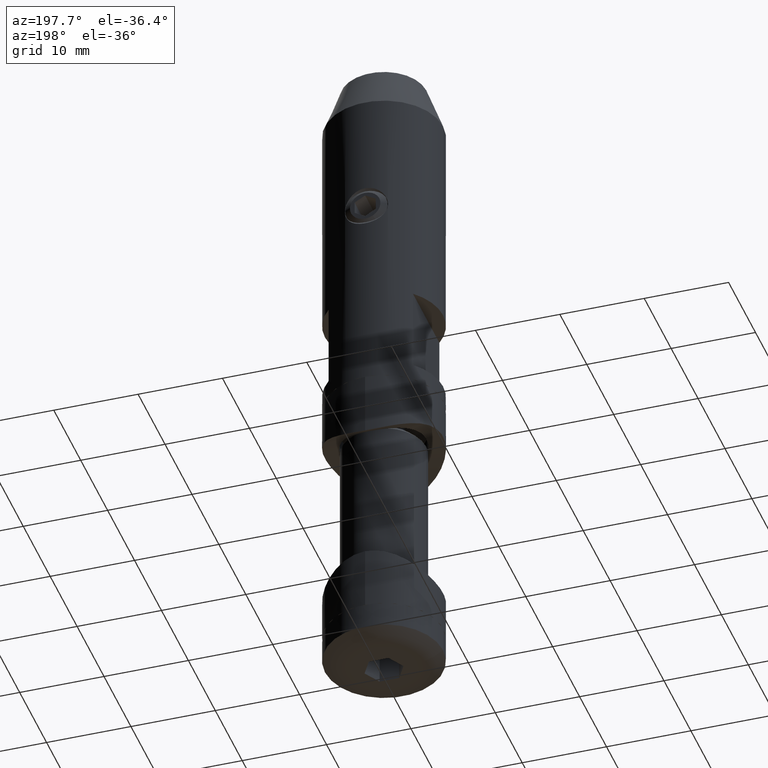
[diagram: clean part render]
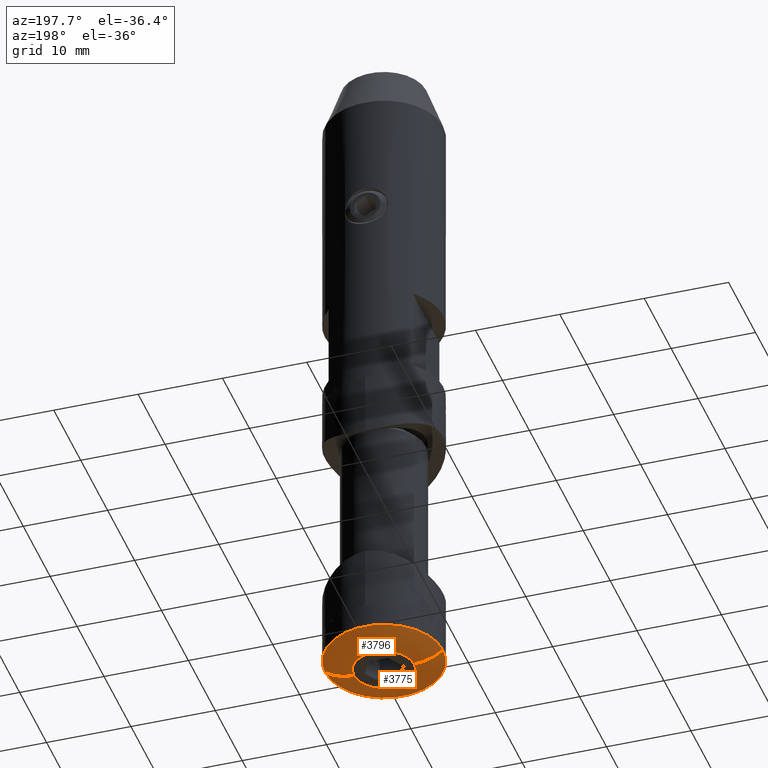
[diagram: same view with one multi-face feature highlighted, each face labeled with its STEP entity id]
A machine part, auxiliary view. The highlighted faces form ONE feature: a constant-radius fillet chain: 2 tangent blend faces with common blend radius 5.5 mm. The faces share edges in the B-rep.
Their STEP definitions:
[1] entity #3796 (Torus):
#315 = DIRECTION ( 'NONE',  ( -0.000000000000000000, -0.000000000000000000, 1.000000000000000000 ) ) ;
#1288 = CIRCLE ( 'NONE', #5336, 7.000000000000000000 ) ;
#1455 = CARTESIAN_POINT ( 'NONE',  ( -6.999999999999995559, 8.572527594031468259E-16, -16.50000000000000000 ) ) ;
#1972 = CIRCLE ( 'NONE', #19920, 5.499999999999998224 ) ;
#2491 = VERTEX_POINT ( 'NONE', #1455 ) ;
#2788 = CARTESIAN_POINT ( 'NONE',  ( 3.570714360103545371, 0.000000000000000000, -17.69999999999999929 ) ) ;
#2853 = CARTESIAN_POINT ( 'NONE',  ( 6.999999999999995559, 0.000000000000000000, -16.50000000000000000 ) ) ;
#3342 = CARTESIAN_POINT ( 'NONE',  ( 0.000000000000000000, 0.000000000000000000, -16.50000000000000000 ) ) ;
#3796 = ADVANCED_FACE ( 'NONE', ( #17638 ), #10815, .T. ) ;
#4222 = ORIENTED_EDGE ( 'NONE', *, *, #7929, .T. ) ;
#4309 = EDGE_CURVE ( 'NONE', #12800, #2491, #1288, .T. ) ;
#4459 = EDGE_LOOP ( 'NONE', ( #4222, #19439, #18791, #12354 ) ) ;
#4559 = AXIS2_PLACEMENT_3D ( 'NONE', #8093, #14055, #4791 ) ;
#4665 = CARTESIAN_POINT ( 'NONE',  ( 0.000000000000000000, 0.000000000000000000, -17.69999999999999929 ) ) ;
#4791 = DIRECTION ( 'NONE',  ( 1.000000000000000000, 0.000000000000000000, 0.000000000000000000 ) ) ;
#5305 = EDGE_CURVE ( 'NONE', #19863, #12800, #1972, .T. ) ;
#5336 = AXIS2_PLACEMENT_3D ( 'NONE', #3342, #12704, #14273 ) ;
#5597 = DIRECTION ( 'NONE',  ( 0.000000000000000000, 0.000000000000000000, -1.000000000000000000 ) ) ;
#7039 = DIRECTION ( 'NONE',  ( 1.224646799147353207E-16, 1.000000000000000000, 0.000000000000000000 ) ) ;
#7178 = DIRECTION ( 'NONE',  ( -1.000000000000000000, 1.224646799147353207E-16, 0.000000000000000000 ) ) ;
#7778 = VERTEX_POINT ( 'NONE', #18488 ) ;
#7929 = EDGE_CURVE ( 'NONE', #19863, #7778, #12451, .T. ) ;
#8093 = CARTESIAN_POINT ( 'NONE',  ( 0.000000000000000000, 0.000000000000000000, -12.20000000000000284 ) ) ;
#9704 = CARTESIAN_POINT ( 'NONE',  ( 3.570714360103546259, 0.000000000000000000, -12.20000000000000284 ) ) ;
#10406 = CARTESIAN_POINT ( 'NONE',  ( -3.570714360103546259, 4.372863911770297854E-16, -12.20000000000000284 ) ) ;
#10815 = TOROIDAL_SURFACE ( 'NONE', #4559, 3.570714360103546259, 5.499999999999996447 ) ;
#11161 = DIRECTION ( 'NONE',  ( 1.000000000000000000, 0.000000000000000000, 0.000000000000000000 ) ) ;
#12112 = AXIS2_PLACEMENT_3D ( 'NONE', #10406, #7039, #7178 ) ;
#12354 = ORIENTED_EDGE ( 'NONE', *, *, #5305, .F. ) ;
#12451 = CIRCLE ( 'NONE', #18728, 3.570714360103545371 ) ;
#12704 = DIRECTION ( 'NONE',  ( -0.000000000000000000, -0.000000000000000000, 1.000000000000000000 ) ) ;
#12800 = VERTEX_POINT ( 'NONE', #2853 ) ;
#14055 = DIRECTION ( 'NONE',  ( -0.000000000000000000, -0.000000000000000000, 1.000000000000000000 ) ) ;
#14273 = DIRECTION ( 'NONE',  ( 1.000000000000000000, 0.000000000000000000, 0.000000000000000000 ) ) ;
#17638 = FACE_OUTER_BOUND ( 'NONE', #4459, .T. ) ;
#18488 = CARTESIAN_POINT ( 'NONE',  ( -3.570714360103545371, 6.472695752900883550E-16, -17.69999999999999929 ) ) ;
#18728 = AXIS2_PLACEMENT_3D ( 'NONE', #4665, #315, #11161 ) ;
#18791 = ORIENTED_EDGE ( 'NONE', *, *, #4309, .F. ) ;
#18932 = CIRCLE ( 'NONE', #12112, 5.499999999999996447 ) ;
#19439 = ORIENTED_EDGE ( 'NONE', *, *, #19625, .T. ) ;
#19625 = EDGE_CURVE ( 'NONE', #7778, #2491, #18932, .T. ) ;
#19630 = DIRECTION ( 'NONE',  ( 0.000000000000000000, -1.000000000000000000, 0.000000000000000000 ) ) ;
#19863 = VERTEX_POINT ( 'NONE', #2788 ) ;
#19920 = AXIS2_PLACEMENT_3D ( 'NONE', #9704, #19630, #5597 ) ;
[2] entity #3775 (Torus):
#1455 = CARTESIAN_POINT ( 'NONE',  ( -6.999999999999995559, 8.572527594031468259E-16, -16.50000000000000000 ) ) ;
#1972 = CIRCLE ( 'NONE', #19920, 5.499999999999998224 ) ;
#2105 = ORIENTED_EDGE ( 'NONE', *, *, #14348, .T. ) ;
#2491 = VERTEX_POINT ( 'NONE', #1455 ) ;
#2788 = CARTESIAN_POINT ( 'NONE',  ( 3.570714360103545371, 0.000000000000000000, -17.69999999999999929 ) ) ;
#2853 = CARTESIAN_POINT ( 'NONE',  ( 6.999999999999995559, 0.000000000000000000, -16.50000000000000000 ) ) ;
#3221 = FACE_OUTER_BOUND ( 'NONE', #3964, .T. ) ;
#3376 = CARTESIAN_POINT ( 'NONE',  ( 0.000000000000000000, 0.000000000000000000, -12.20000000000000284 ) ) ;
#3523 = AXIS2_PLACEMENT_3D ( 'NONE', #3376, #17252, #12548 ) ;
#3775 = ADVANCED_FACE ( 'NONE', ( #3221 ), #16699, .T. ) ;
#3964 = EDGE_LOOP ( 'NONE', ( #11254, #2105, #4262, #6316 ) ) ;
#4262 = ORIENTED_EDGE ( 'NONE', *, *, #5305, .T. ) ;
#4329 = AXIS2_PLACEMENT_3D ( 'NONE', #8204, #17476, #13058 ) ;
#5305 = EDGE_CURVE ( 'NONE', #19863, #12800, #1972, .T. ) ;
#5597 = DIRECTION ( 'NONE',  ( 0.000000000000000000, 0.000000000000000000, -1.000000000000000000 ) ) ;
#6316 = ORIENTED_EDGE ( 'NONE', *, *, #7037, .F. ) ;
#7037 = EDGE_CURVE ( 'NONE', #2491, #12800, #10021, .T. ) ;
#7039 = DIRECTION ( 'NONE',  ( 1.224646799147353207E-16, 1.000000000000000000, 0.000000000000000000 ) ) ;
#7178 = DIRECTION ( 'NONE',  ( -1.000000000000000000, 1.224646799147353207E-16, 0.000000000000000000 ) ) ;
#7778 = VERTEX_POINT ( 'NONE', #18488 ) ;
#8204 = CARTESIAN_POINT ( 'NONE',  ( 0.000000000000000000, 0.000000000000000000, -16.50000000000000000 ) ) ;
#8774 = AXIS2_PLACEMENT_3D ( 'NONE', #11870, #11795, #16458 ) ;
#9704 = CARTESIAN_POINT ( 'NONE',  ( 3.570714360103546259, 0.000000000000000000, -12.20000000000000284 ) ) ;
#10021 = CIRCLE ( 'NONE', #4329, 7.000000000000000000 ) ;
#10406 = CARTESIAN_POINT ( 'NONE',  ( -3.570714360103546259, 4.372863911770297854E-16, -12.20000000000000284 ) ) ;
#11254 = ORIENTED_EDGE ( 'NONE', *, *, #19625, .F. ) ;
#11795 = DIRECTION ( 'NONE',  ( -0.000000000000000000, -0.000000000000000000, 1.000000000000000000 ) ) ;
#11870 = CARTESIAN_POINT ( 'NONE',  ( 0.000000000000000000, 0.000000000000000000, -17.69999999999999929 ) ) ;
#12112 = AXIS2_PLACEMENT_3D ( 'NONE', #10406, #7039, #7178 ) ;
#12548 = DIRECTION ( 'NONE',  ( 1.000000000000000000, 0.000000000000000000, 0.000000000000000000 ) ) ;
#12800 = VERTEX_POINT ( 'NONE', #2853 ) ;
#13058 = DIRECTION ( 'NONE',  ( 1.000000000000000000, 0.000000000000000000, 0.000000000000000000 ) ) ;
#14348 = EDGE_CURVE ( 'NONE', #7778, #19863, #14821, .T. ) ;
#14821 = CIRCLE ( 'NONE', #8774, 3.570714360103545371 ) ;
#16458 = DIRECTION ( 'NONE',  ( 1.000000000000000000, 0.000000000000000000, 0.000000000000000000 ) ) ;
#16699 = TOROIDAL_SURFACE ( 'NONE', #3523, 3.570714360103546259, 5.499999999999996447 ) ;
#17252 = DIRECTION ( 'NONE',  ( -0.000000000000000000, -0.000000000000000000, 1.000000000000000000 ) ) ;
#17476 = DIRECTION ( 'NONE',  ( -0.000000000000000000, -0.000000000000000000, 1.000000000000000000 ) ) ;
#18488 = CARTESIAN_POINT ( 'NONE',  ( -3.570714360103545371, 6.472695752900883550E-16, -17.69999999999999929 ) ) ;
#18932 = CIRCLE ( 'NONE', #12112, 5.499999999999996447 ) ;
#19625 = EDGE_CURVE ( 'NONE', #7778, #2491, #18932, .T. ) ;
#19630 = DIRECTION ( 'NONE',  ( 0.000000000000000000, -1.000000000000000000, 0.000000000000000000 ) ) ;
#19863 = VERTEX_POINT ( 'NONE', #2788 ) ;
#19920 = AXIS2_PLACEMENT_3D ( 'NONE', #9704, #19630, #5597 ) ;